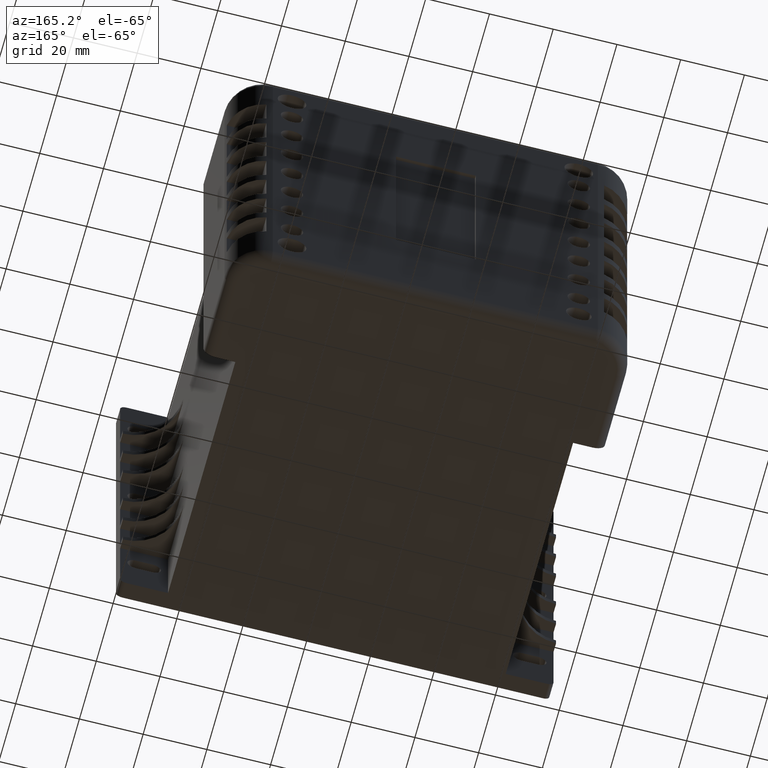
[diagram: clean part render]
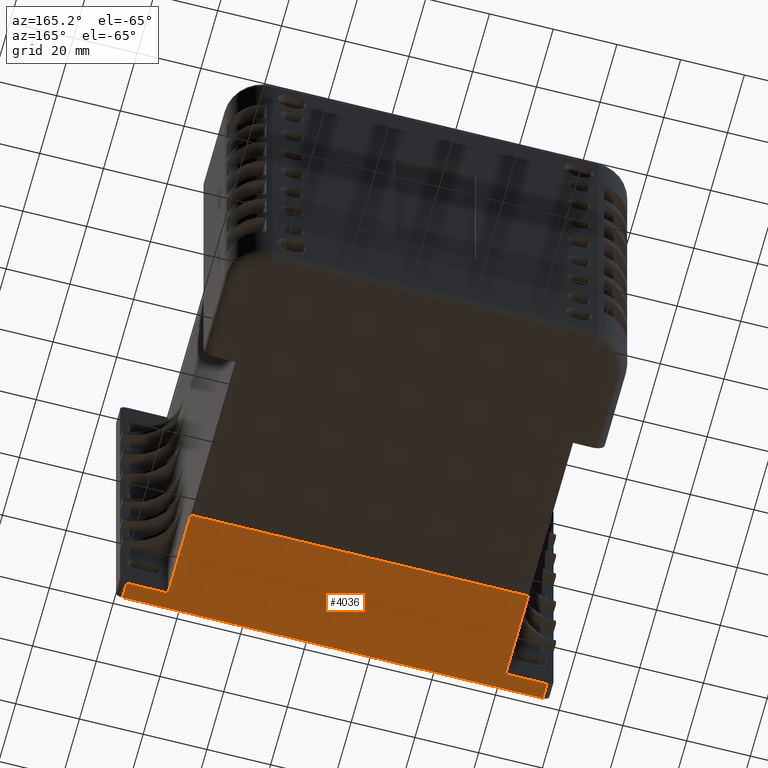
[diagram: same view with one face highlighted and labeled with its STEP entity id]
A machine part, auxiliary view. The second image highlights one B-rep face of the part: STEP entity #4036.
In plain terms, the highlighted planar face has unit normal (0, 0, -1).
Its self-contained STEP definition (entity closure, byte-faithful):
#323=FACE_OUTER_BOUND('',#571,.T.);
#571=EDGE_LOOP('',(#2644,#2645,#2646,#2647,#2648,#2649,#2650,#2651));
#841=LINE('',#5949,#1233);
#843=LINE('',#5955,#1235);
#846=LINE('',#5960,#1238);
#850=LINE('',#5971,#1242);
#899=LINE('',#6120,#1291);
#900=LINE('',#6122,#1292);
#901=LINE('',#6123,#1293);
#902=LINE('',#6124,#1294);
#1233=VECTOR('',#4770,10.);
#1235=VECTOR('',#4774,10.);
#1238=VECTOR('',#4779,10.);
#1242=VECTOR('',#4789,10.);
#1291=VECTOR('',#4938,10.);
#1292=VECTOR('',#4939,10.);
#1293=VECTOR('',#4940,10.);
#1294=VECTOR('',#4941,10.);
#1619=VERTEX_POINT('',#5943);
#1621=VERTEX_POINT('',#5947);
#1622=VERTEX_POINT('',#5951);
#1624=VERTEX_POINT('',#5954);
#1629=VERTEX_POINT('',#5969);
#1678=VERTEX_POINT('',#6118);
#1679=VERTEX_POINT('',#6119);
#1680=VERTEX_POINT('',#6121);
#1977=EDGE_CURVE('',#1619,#1621,#841,.T.);
#1979=EDGE_CURVE('',#1622,#1624,#843,.T.);
#1982=EDGE_CURVE('',#1624,#1621,#846,.T.);
#1988=EDGE_CURVE('',#1629,#1622,#850,.T.);
#2061=EDGE_CURVE('',#1678,#1679,#899,.T.);
#2062=EDGE_CURVE('',#1679,#1680,#900,.T.);
#2063=EDGE_CURVE('',#1619,#1680,#901,.T.);
#2064=EDGE_CURVE('',#1678,#1629,#902,.T.);
#2644=ORIENTED_EDGE('',*,*,#2061,.T.);
#2645=ORIENTED_EDGE('',*,*,#2062,.T.);
#2646=ORIENTED_EDGE('',*,*,#2063,.F.);
#2647=ORIENTED_EDGE('',*,*,#1977,.T.);
#2648=ORIENTED_EDGE('',*,*,#1982,.F.);
#2649=ORIENTED_EDGE('',*,*,#1979,.F.);
#2650=ORIENTED_EDGE('',*,*,#1988,.F.);
#2651=ORIENTED_EDGE('',*,*,#2064,.F.);
#3579=PLANE('',#4411);
#4036=ADVANCED_FACE('',(#323),#3579,.T.);
#4411=AXIS2_PLACEMENT_3D('',#6117,#4936,#4937);
#4770=DIRECTION('',(0.,1.,0.));
#4774=DIRECTION('',(0.,1.,0.));
#4779=DIRECTION('',(-1.,0.,4.07169096936269E-16));
#4789=DIRECTION('',(-1.,0.,0.));
#4936=DIRECTION('center_axis',(0.,0.,-1.));
#4937=DIRECTION('ref_axis',(-1.,0.,0.));
#4938=DIRECTION('',(-1.,0.,0.));
#4939=DIRECTION('',(0.,1.,0.));
#4940=DIRECTION('',(-1.,0.,0.));
#4941=DIRECTION('',(0.,1.,0.));
#5943=CARTESIAN_POINT('',(-121.,5.,7.63278748723953E-15));
#5947=CARTESIAN_POINT('',(-121.,32.,0.));
#5949=CARTESIAN_POINT('',(-121.,5.,7.63278748723953E-15));
#5951=CARTESIAN_POINT('',(-15.,5.,-3.5527136788005E-14));
#5954=CARTESIAN_POINT('',(-15.,32.,-3.5527136788005E-14));
#5955=CARTESIAN_POINT('',(-15.,5.,-3.5527136788005E-14));
#5960=CARTESIAN_POINT('',(-15.,32.,-3.5527136788005E-14));
#5969=CARTESIAN_POINT('',(-1.99999999999999,5.,0.));
#5971=CARTESIAN_POINT('',(-2.,5.,0.));
#6117=CARTESIAN_POINT('Origin',(-2.,0.,0.));
#6118=CARTESIAN_POINT('',(-2.,0.,0.));
#6119=CARTESIAN_POINT('',(-134.,0.,0.));
#6120=CARTESIAN_POINT('',(-2.,0.,0.));
#6121=CARTESIAN_POINT('',(-134.,5.,0.));
#6122=CARTESIAN_POINT('',(-134.,0.,0.));
#6123=CARTESIAN_POINT('',(-2.,5.,0.));
#6124=CARTESIAN_POINT('',(-2.,0.,0.));